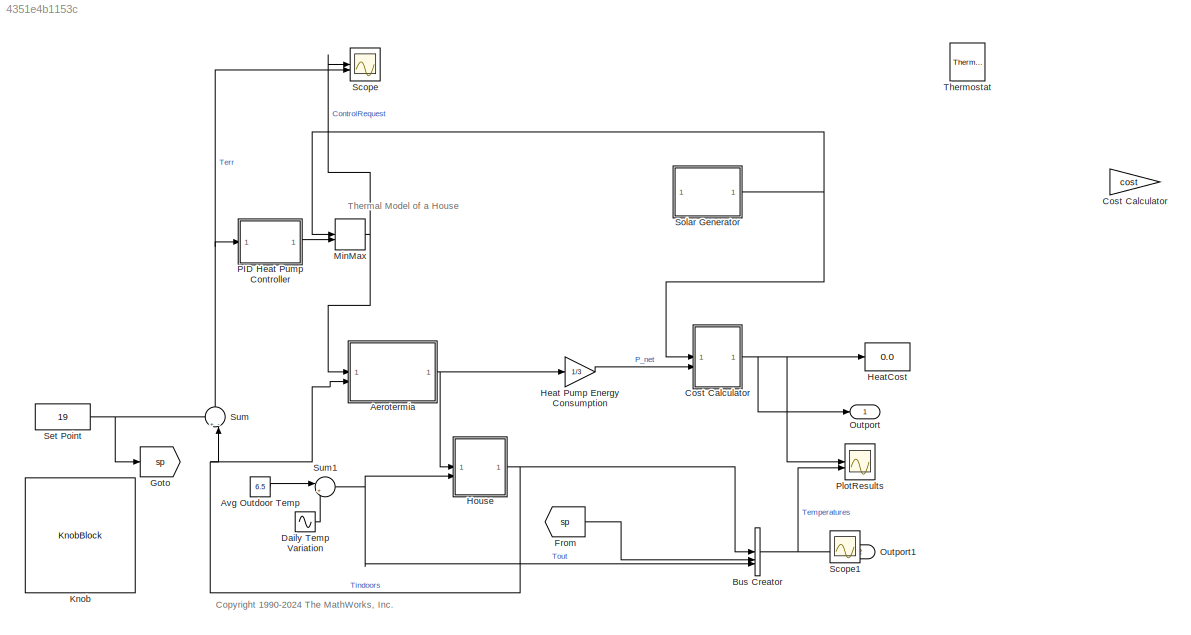
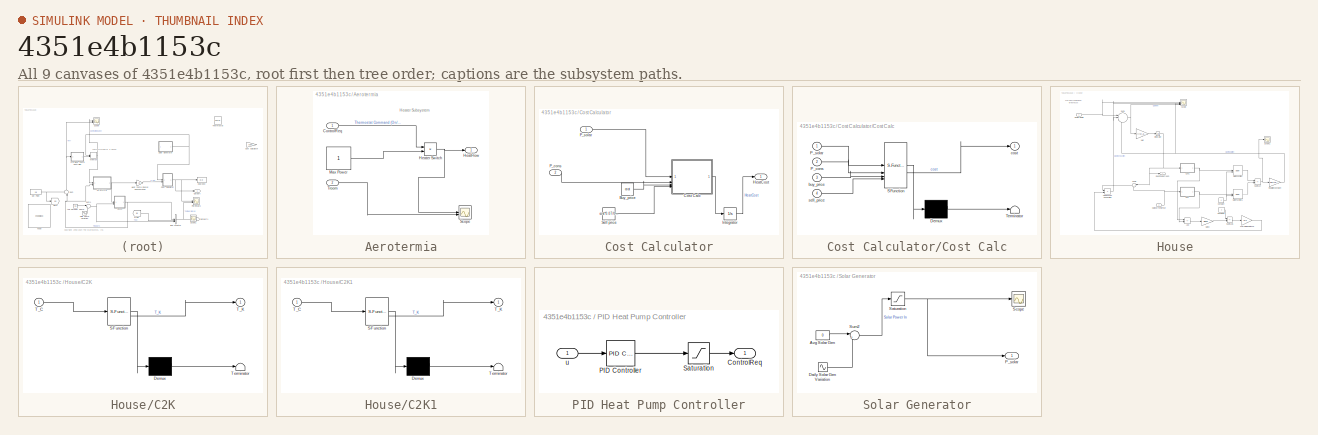
[diagram: thumbnail index - all 9 canvases of the model, root first then tree order]
MODEL slx_4351e4b1153c
KIND model
CONFIG AbsTol = 1e-6
CONFIG EnableMultiTasking = off
CONFIG FixedStep = 60
CONFIG MaxStep = auto
CONFIG MinStep = auto
CONFIG RelTol = 1e-3
CONFIG SampleTimeConstraint = Unconstrained
CONFIG SolverName = ode4
CONFIG StartTime = 0.0
CONFIG StopTime = 604800
WORKSPACE source: MATLAB code (in-file)
WORKSPACE code: sldemo_househeat_data
BLOCK [SubSystem] Aerotermia
BLOCK [Inport] Aerotermia/ControlReq
BLOCK [Outport] Aerotermia/HeatFlow
  VectorParamsAs1DForOutWhenUnconnected = off
BLOCK [Product] Aerotermia/Heater Switch
  RndMeth = Zero
BLOCK [Constant] Aerotermia/Max Power
BLOCK [Scope] Aerotermia/Scope
  Floating = off
  NumInputPorts = 2
  ScopeSpecificationString = Simulink.scopes.TimeScopeBlockCfg('CurrentConfiguration', extmgr.ConfigurationSet(extmgr.Configuration('Core','General UI',true),extmgr.Configuration('Core','Source UI',true),extmgr.Configuration('Sources','WiredSimulink',true,'DataLoggingVariableName','ScopeData4'),extmgr.Configuration('Visuals','Time Domain',true,'SerializedDisplays',{struct('MinYLimReal','-1553.37892','MaxYLimReal','13980.41032...<+1495ch>
BLOCK [Inport] Aerotermia/Troom
  Port = 2
BLOCK [Constant] Avg Outdoor Temp
  Value = 6.5
BLOCK [BusCreator] Bus Creator
  DisplayOption = bar
  InheritFromInputs = on
  Inputs = 3
BLOCK [SubSystem] Cost Calculator
BLOCK [Constant] Cost Calculator/Buy_price
  Value = cost
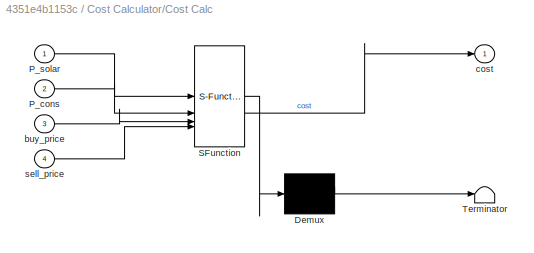
BLOCK [SubSystem] Cost Calculator/Cost Calc
  ErrorFcn = Stateflow.Translate.translate
  PermitHierarchicalResolution = ExplicitOnly
  SFBlockType = MATLAB Function
  TreatAsAtomicUnit = on
BLOCK [Demux] Cost Calculator/Cost Calc/ Demux 
  Outputs = 1
BLOCK [S-Function] Cost Calculator/Cost Calc/ SFunction 
  EnableBusSupport = on
  FunctionName = sf_sfun
  PortCounts = [4 2]
  SFcnIsStateOwnerBlock = off
  SFunctionDeploymentMode = off
  Tag = Stateflow S-Function 3
BLOCK [Terminator] Cost Calculator/Cost Calc/ Terminator 
BLOCK [Inport] Cost Calculator/Cost Calc/P_cons
  Port = 2
BLOCK [Inport] Cost Calculator/Cost Calc/P_solar
BLOCK [Inport] Cost Calculator/Cost Calc/buy_price
  Port = 3
BLOCK [Outport] Cost Calculator/Cost Calc/cost
BLOCK [Inport] Cost Calculator/Cost Calc/sell_price
  Port = 4
BLOCK [Outport] Cost Calculator/HeatCost
BLOCK [Integrator] Cost Calculator/Integrator
BLOCK [Inport] Cost Calculator/P_cons
  Port = 2
BLOCK [Inport] Cost Calculator/P_solar
BLOCK [Constant] Cost Calculator/Sell price
  Value = cost*0.07/0.25
BLOCK [Sin] Daily Temp Variation
  Amplitude = 3.5
  Frequency = (2*pi)/(24*3600)
  SampleTime = 0
BLOCK [From] From
  GotoTag = sp
  TagVisibility = global
BLOCK [Goto] Goto
  GotoTag = sp
  TagVisibility = global
BLOCK [Gain] Heat Pump Energy Consumption
  Gain = 1/3
BLOCK [Display] HeatCost
  Decimation = 1
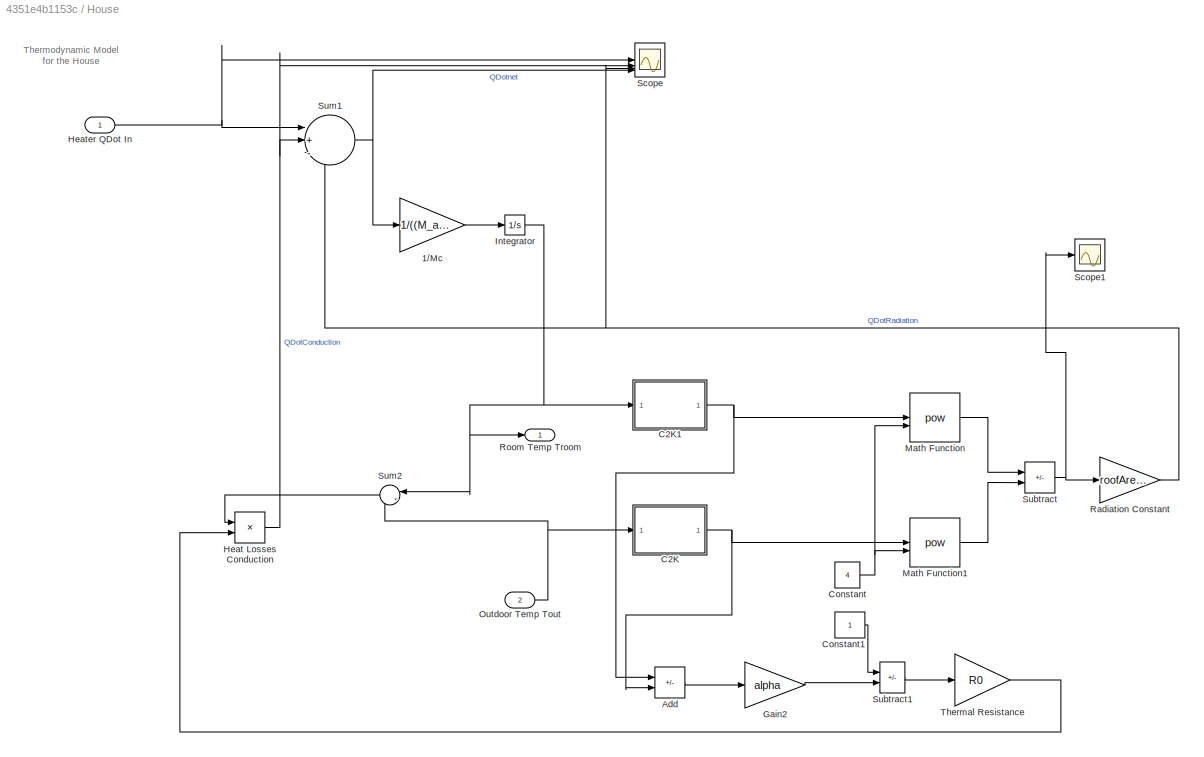
BLOCK [SubSystem] House
BLOCK [Gain] House/1//Mc
  Gain = 1/((M_air*c_air)+(Mbrick*cbrick))
  OutDataTypeStr = Inherit: Same as input
  ParamDataTypeStr = Inherit: Same as input
  SaturateOnIntegerOverflow = on
BLOCK [Sum] House/Add
  IconShape = rectangular
  Inputs = +-
BLOCK [SubSystem] House/C2K
  ErrorFcn = Stateflow.Translate.translate
  PermitHierarchicalResolution = ExplicitOnly
  SFBlockType = MATLAB Function
  TreatAsAtomicUnit = on
BLOCK [Demux] House/C2K/ Demux 
  Outputs = 1
BLOCK [S-Function] House/C2K/ SFunction 
  EnableBusSupport = on
  FunctionName = sf_sfun
  PortCounts = [1 2]
  SFcnIsStateOwnerBlock = off
  SFunctionDeploymentMode = off
  Tag = Stateflow S-Function 2
BLOCK [Terminator] House/C2K/ Terminator 
BLOCK [Inport] House/C2K/T_C
BLOCK [Outport] House/C2K/T_K
BLOCK [SubSystem] House/C2K1
  ErrorFcn = Stateflow.Translate.translate
  PermitHierarchicalResolution = ExplicitOnly
  SFBlockType = MATLAB Function
  TreatAsAtomicUnit = on
BLOCK [Demux] House/C2K1/ Demux 
  Outputs = 1
BLOCK [S-Function] House/C2K1/ SFunction 
  EnableBusSupport = on
  FunctionName = sf_sfun
  PortCounts = [1 2]
  SFcnIsStateOwnerBlock = off
  SFunctionDeploymentMode = off
  Tag = Stateflow S-Function 1
BLOCK [Terminator] House/C2K1/ Terminator 
BLOCK [Inport] House/C2K1/T_C
BLOCK [Outport] House/C2K1/T_K
BLOCK [Constant] House/Constant
  Value = 4
BLOCK [Constant] House/Constant1
BLOCK [Gain] House/Gain2
  Gain = alpha
BLOCK [Product] House/Heat Losses Conduction
  Inputs = */
BLOCK [Inport] House/Heater QDot In
BLOCK [Integrator] House/Integrator
  InitialCondition = TinIC
BLOCK [Math] House/Math Function
  Operator = pow
BLOCK [Math] House/Math Function1
  Operator = pow
BLOCK [Inport] House/Outdoor Temp Tout
  Port = 2
BLOCK [Gain] House/Radiation Constant
  Gain = roofArea*sigma*epsilon*0.1
BLOCK [Outport] House/Room Temp Troom
  InitialOutput = 0
  VectorParamsAs1DForOutWhenUnconnected = off
BLOCK [Scope] House/Scope
  Floating = off
  NumInputPorts = 4
  ScopeSpecificationString = Simulink.scopes.TimeScopeBlockCfg('CurrentConfiguration', extmgr.ConfigurationSet(extmgr.Configuration('Core','General UI',true),extmgr.Configuration('Core','Source UI',true),extmgr.Configuration('Sources','WiredSimulink',true,'DataLoggingVariableName','ScopeData1'),extmgr.Configuration('Visuals','Time Domain',true,'SerializedDisplays',{struct('MinYLimReal','-48633998.43232','MaxYLimReal','4332311...<+1723ch>
BLOCK [Scope] House/Scope1
  Floating = off
  NumInputPorts = 1
  ScopeSpecificationString = Simulink.scopes.TimeScopeBlockCfg('CurrentConfiguration', extmgr.ConfigurationSet(extmgr.Configuration('Core','General UI',true),extmgr.Configuration('Core','Source UI',true),extmgr.Configuration('Sources','WiredSimulink',true,'DataLoggingVariableName','ScopeData1'),extmgr.Configuration('Visuals','Time Domain',true,'SerializedDisplays',{struct('MinYLimReal','622680197.92086','MaxYLimReal','1685901...<+1522ch>
BLOCK [Sum] House/Subtract
  IconShape = rectangular
  Inputs = +-
BLOCK [Sum] House/Subtract1
  IconShape = rectangular
  Inputs = +-
BLOCK [Sum] House/Sum1
  InputSameDT = on
  Inputs = |+--
  OutDataTypeStr = Inherit: Same as first input
  SaturateOnIntegerOverflow = on
BLOCK [Sum] House/Sum2
  InputSameDT = on
  Inputs = |+-
  OutDataTypeStr = Inherit: Same as first input
  SaturateOnIntegerOverflow = on
BLOCK [Gain] House/Thermal Resistance
  Gain = R0
BLOCK [KnobBlock] Knob
  ScaleMax = 40
BLOCK [MinMax] MinMax
  Function = max
  Inputs = 2
BLOCK [Outport] Outport
BLOCK [Outport] Outport1
  Port = 2
BLOCK [SubSystem] PID Heat Pump Controller
BLOCK [Outport] PID Heat Pump Controller/ControlReq
BLOCK [Reference] PID Heat Pump Controller/PID Controller  REF=slpidlib/PID Controller
  LibrarySourceBlock = simulink/Continuous/PID Controller
  SourceBlock = slpidlib/PID Controller
  SourceType = PID 1dof
BLOCK [Saturate] PID Heat Pump Controller/Saturation
  LowerLimit = 0
  UpperLimit = QAerotermia
BLOCK [Inport] PID Heat Pump Controller/u
BLOCK [Scope] PlotResults
  Floating = off
  NumInputPorts = 2
  ScopeSpecificationString = Simulink.scopes.TimeScopeBlockCfg('CurrentConfiguration', extmgr.ConfigurationSet(extmgr.Configuration('Core','General UI',true),extmgr.Configuration('Core','Source UI',true),extmgr.Configuration('Sources','WiredSimulink',true,'DataLoggingVariableName','ScopeData1'),extmgr.Configuration('Visuals','Time Domain',true,'SerializedDisplays',{struct('MinYLimReal','-14.67209','MaxYLimReal','80.26492','YL...<+2520ch>
BLOCK [Scope] Scope
  Floating = off
  NumInputPorts = 2
  ScopeSpecificationString = Simulink.scopes.TimeScopeBlockCfg('CurrentConfiguration', extmgr.ConfigurationSet(extmgr.Configuration('Core','General UI',true),extmgr.Configuration('Core','Source UI',true),extmgr.Configuration('Sources','WiredSimulink',true,'DataLoggingVariableName','ScopeData3'),extmgr.Configuration('Visuals','Time Domain',true,'SerializedDisplays',{struct('MinYLimReal','-1751.51633','MaxYLimReal','15750.16848...<+1556ch>
BLOCK [Scope] Scope1
  Floating = off
  IOType = viewer
  NumInputPorts = 1
  ScopeSpecificationString = Simulink.scopes.TimeScopeBlockCfg('CurrentConfiguration', extmgr.ConfigurationSet(extmgr.Configuration('Core','General UI',true),extmgr.Configuration('Core','Source UI',true),extmgr.Configuration('Sources','WiredSimulink',true,'DataLoggingVariableName','ScopeData1'),extmgr.Configuration('Visuals','Time Domain',true,'SerializedDisplays',{struct('MinYLimReal','-0.125','MaxYLimReal','1.125','YLabelRe...<+1436ch>
BLOCK [Constant] Set Point
  NameLocation = top
  Value = 19
BLOCK [SubSystem] Solar Generator
BLOCK [Constant] Solar Generator/Avg Solar Gen
  Value = 0
BLOCK [Sin] Solar Generator/Daily Solar Gen Variation
  Amplitude = 2000
  Frequency = (2*pi)/(24*3600)
  SampleTime = 0
BLOCK [Outport] Solar Generator/P_solar
BLOCK [Saturate] Solar Generator/Saturation
  LowerLimit = 0
  UpperLimit = inf
BLOCK [Scope] Solar Generator/Scope
  Floating = off
  NumInputPorts = 1
  ScopeSpecificationString = Simulink.scopes.TimeScopeBlockCfg('CurrentConfiguration', extmgr.ConfigurationSet(extmgr.Configuration('Core','General UI',true),extmgr.Configuration('Core','Source UI',true),extmgr.Configuration('Sources','WiredSimulink',true,'DataLoggingVariableName','ScopeData1'),extmgr.Configuration('Visuals','Time Domain',true,'SerializedDisplays',{struct('MinYLimReal','-250.00000','MaxYLimReal','2250.00000',...<+1466ch>
BLOCK [Sum] Solar Generator/Sum2
  InputSameDT = on
  Inputs = |++
  OutDataTypeStr = Inherit: Same as first input
  SaturateOnIntegerOverflow = on
BLOCK [Sum] Sum
  InputSameDT = on
  Inputs = +-|
  NameLocation = right
  OutDataTypeStr = Inherit: Same as first input
  SaturateOnIntegerOverflow = on
BLOCK [Sum] Sum1
  InputSameDT = on
  Inputs = |++
  OutDataTypeStr = Inherit: Same as first input
  SaturateOnIntegerOverflow = on
BLOCK [Reference] Thermostat  REF=thermostat/Thermostat  (lib defined in slx_0a7226a30868, slx_16e9cb0515b5, +2 more)
  SourceBlock = thermostat/Thermostat
ANNOTATION (root): <copyright redacted>
ANNOTATION (root): Thermal Model of a House
ANNOTATION Aerotermia: Heater Subsystem
ANNOTATION House: Thermodynamic Model for the House
LINE Aerotermia/ControlReq:1 -> Aerotermia/Heater Switch:1
NET Aerotermia/Heater Switch:1 -> Aerotermia/HeatFlow:1, Aerotermia/Scope:1
LINE Aerotermia/Max Power:1 -> Aerotermia/Heater Switch:2
LINE Aerotermia/Troom:1 -> Aerotermia/Scope:2
NET Aerotermia:1 -> Heat Pump Energy Consumption:1, House:1
LINE Avg Outdoor Temp:1 -> Sum1:1
NET Bus Creator:1 -> Outport1:1, PlotResults:2
LINE Cost Calculator/Buy_price:1 -> Cost Calculator/Cost Calc:3
LINE Cost Calculator/Cost Calc:1 -> Cost Calculator/Integrator:1
LINE Cost Calculator/Integrator:1 -> Cost Calculator/HeatCost:1
LINE Cost Calculator/P_cons:1 -> Cost Calculator/Cost Calc:2
LINE Cost Calculator/P_solar:1 -> Cost Calculator/Cost Calc:1
LINE Cost Calculator/Sell price:1 -> Cost Calculator/Cost Calc:4
NET Cost Calculator:1 -> HeatCost:1, Outport:1, PlotResults:1
LINE Daily Temp Variation:1 -> Sum1:2
LINE From:1 -> Bus Creator:2
LINE Heat Pump Energy Consumption:1 -> Cost Calculator:2
LINE House/1//Mc:1 -> House/Integrator:1
LINE House/Add:1 -> House/Gain2:1
NET House/C2K1:1 -> House/Add:1, House/Math Function:1
NET House/C2K:1 -> House/Add:2, House/Math Function1:1
LINE House/Constant1:1 -> House/Subtract1:1
NET House/Constant:1 -> House/Math Function1:2, House/Math Function:2
LINE House/Gain2:1 -> House/Subtract1:2
NET House/Heat Losses Conduction:1 -> House/Scope:2, House/Sum1:2
NET House/Heater QDot In:1 -> House/Scope:1, House/Sum1:1
NET House/Integrator:1 -> House/C2K1:1, House/Room Temp Troom:1, House/Sum2:1
LINE House/Math Function1:1 -> House/Subtract:2
LINE House/Math Function:1 -> House/Subtract:1
NET House/Outdoor Temp Tout:1 -> House/C2K:1, House/Sum2:2
NET House/Radiation Constant:1 -> House/Scope:3, House/Sum1:3
LINE House/Subtract1:1 -> House/Thermal Resistance:1
NET House/Subtract:1 -> House/Radiation Constant:1, House/Scope1:1
NET House/Sum1:1 -> House/1//Mc:1, House/Scope:4
LINE House/Sum2:1 -> House/Heat Losses Conduction:1
LINE House/Thermal Resistance:1 -> House/Heat Losses Conduction:2
NET House:1 -> Aerotermia:2, Bus Creator:1, Sum:2
NET MinMax:1 -> Aerotermia:1, Scope:1
LINE PID Heat Pump Controller/PID Controller:1 -> PID Heat Pump Controller/Saturation:1
LINE PID Heat Pump Controller/Saturation:1 -> PID Heat Pump Controller/ControlReq:1
LINE PID Heat Pump Controller/u:1 -> PID Heat Pump Controller/PID Controller:1
LINE PID Heat Pump Controller:1 -> MinMax:2
NET Set Point:1 -> Goto:1, Sum:1
LINE Solar Generator/Avg Solar Gen:1 -> Solar Generator/Sum2:1
LINE Solar Generator/Daily Solar Gen Variation:1 -> Solar Generator/Sum2:2
NET Solar Generator/Saturation:1 -> Solar Generator/P_solar:1, Solar Generator/Scope:1
LINE Solar Generator/Sum2:1 -> Solar Generator/Saturation:1
NET Solar Generator:1 -> Cost Calculator:1, MinMax:1
NET Sum1:1 -> Bus Creator:3, House:2
NET Sum:1 -> PID Heat Pump Controller:1, Scope:2
note: NET lines group one-source signal fan-out (src -> all destinations, sorted); 1:1 wires keep LINE
CHART House/C2K1 states=1 transitions=1
  STATE_LABEL 'eML_blk_kernel()'
  STATE_LABEL 'SCRIPT:\n\n\n\nfunction T_K = celsiusToKelvin(T_C)\nT_K = T_C + 273.15;\nend\n'
CHART House/C2K states=1 transitions=1
  STATE_LABEL 'eML_blk_kernel()'
  STATE_LABEL 'SCRIPT:\n\n\n\nfunction T_K = celsiusToKelvin(T_C)\nT_K = T_C + 273.15;\nend\n'
CHART Cost Calculator/Cost Calc states=1 transitions=1
  STATE_LABEL 'eML_blk_kernel()'
  STATE_LABEL 'SCRIPT:\nfunction cost = gridCost(P_solar, P_cons, buy_price, sell_price)\nP_net =   P_cons - P_solar;\nif P_net >= 0\n    cost = P_net * buy_price;\nelse\n    cost = P_net * sell_price;\nend\nend'
CHART  states=0 transitions=0
CHART  states=0 transitions=0
CHART  states=0 transitions=0
